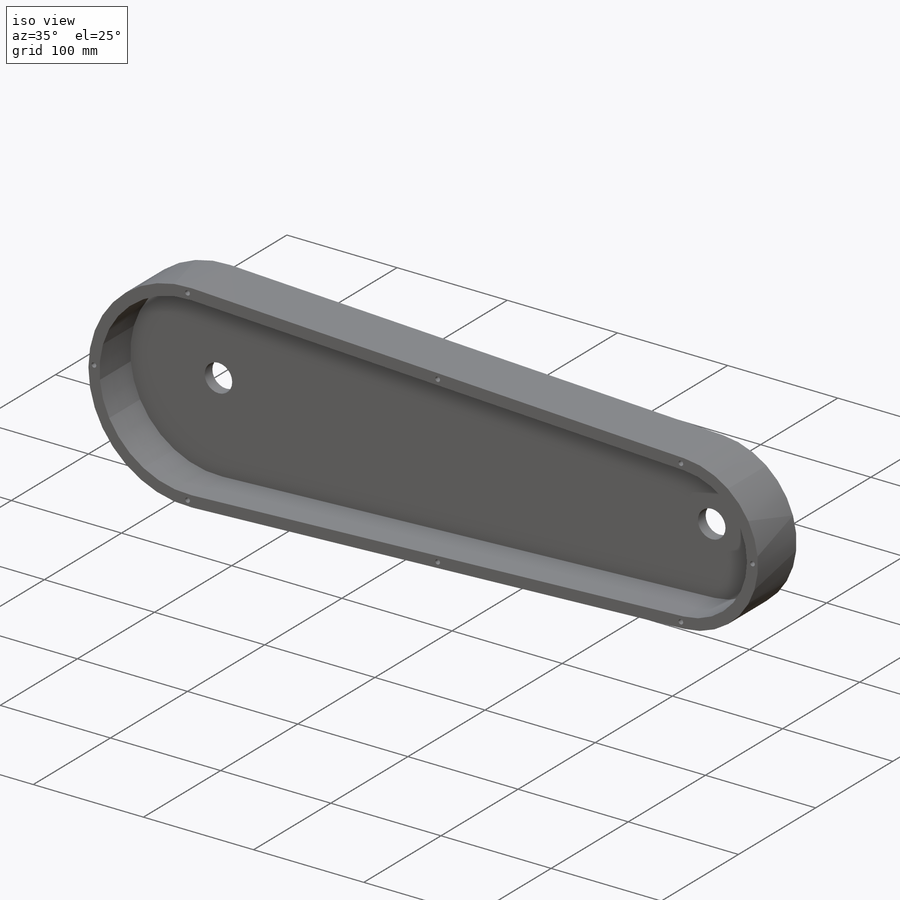
[diagram: iso view]
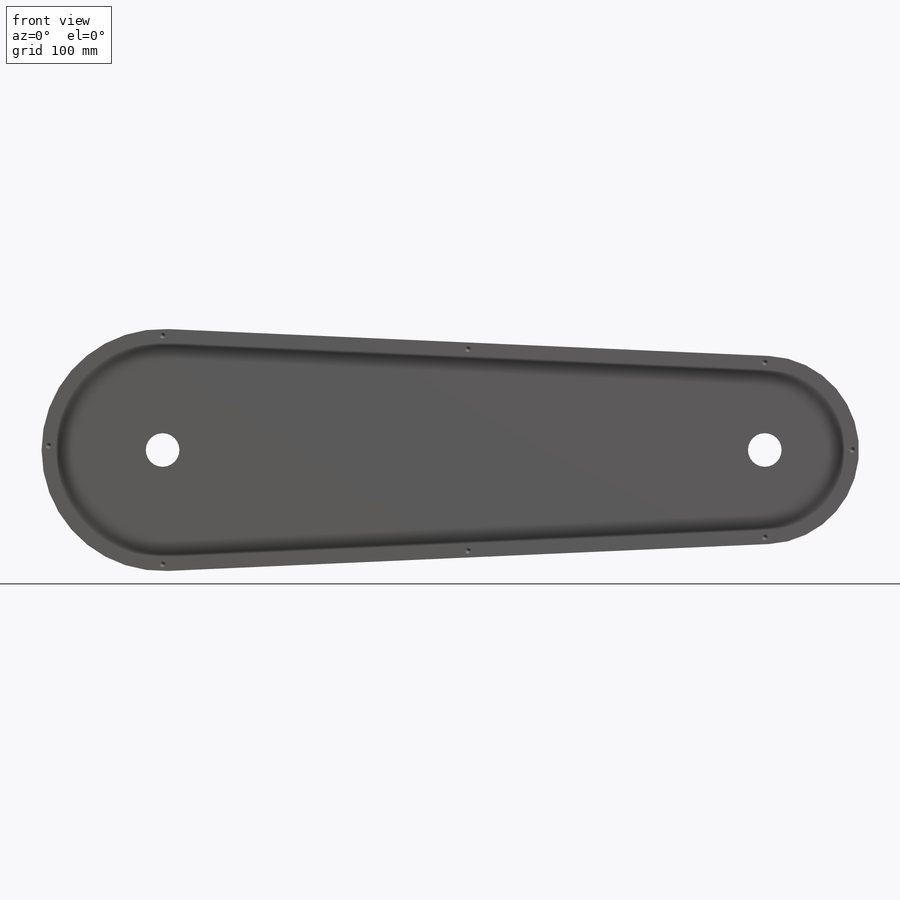
[diagram: front view]
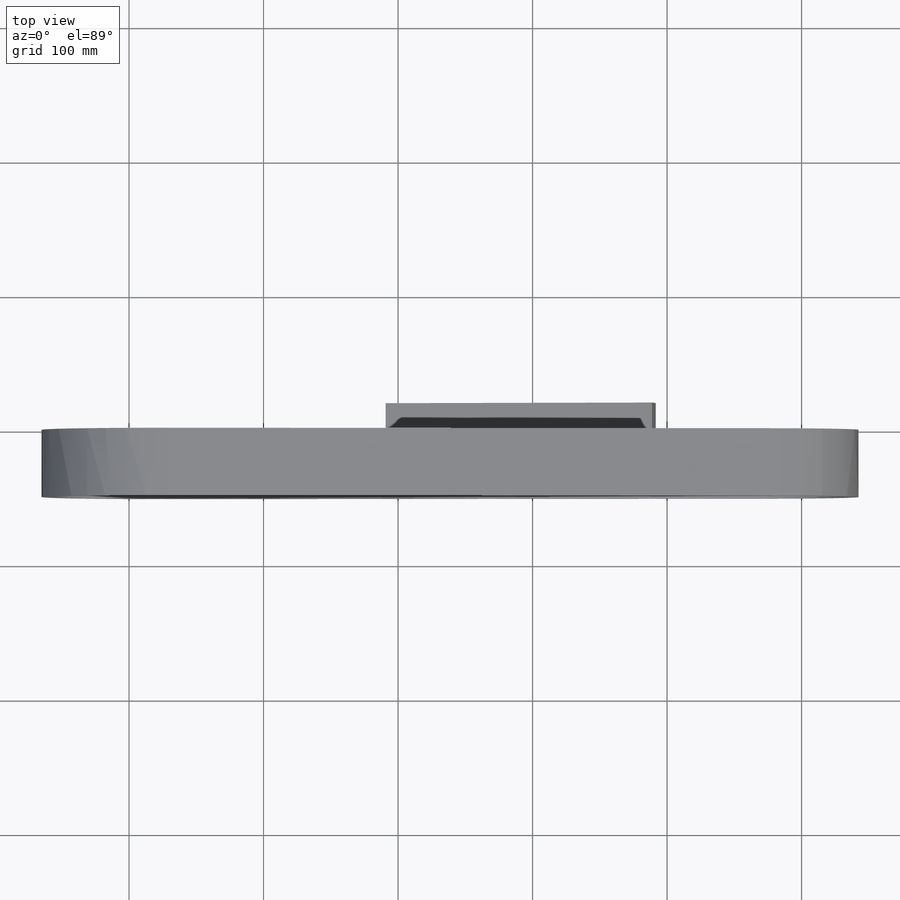
[diagram: top view]
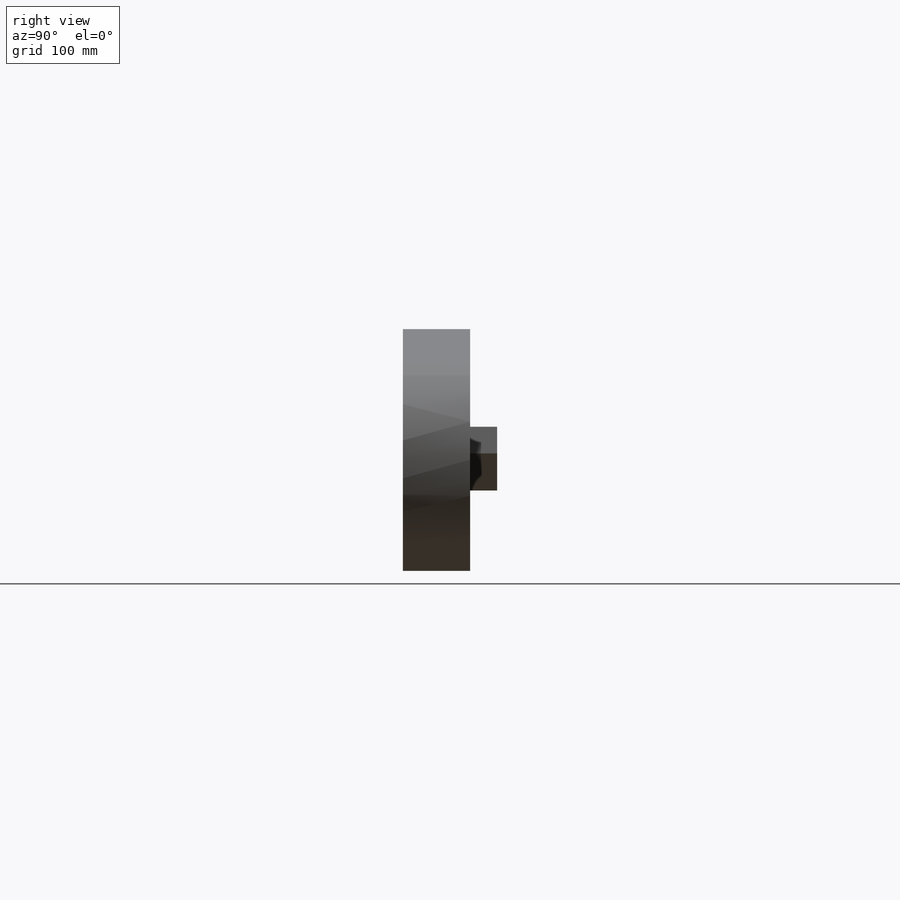
[diagram: right view]
SOLIDWORKS PART (.sldprt)
format: sldprt  version: not decoded by parser v0  size: 331,264 bytes
history: native  units: mm
features: thread x11, sketch x6, extrude x2, material x1, shell x1, cut_extrude x1, hole x1 (+16 scaffold rows collapsed)
feature tree (39):
  scaffold x16  (default folders/planes/origin — collapsed)
  material  "Material <not specified>"
  sketch  "Sketch1"  dims[c1.D1=135.0mm c1.D2=104.0mm c2.D1=90.0mm c2.D2=70.0mm c2.D3=446.82mm c3.D1=2.325mm]
  extrude  "Boss-Extrude2"  Depth=50mm
  shell  "Shell2"  Thickness=10mm
  sketch  "Sketch2"  dims[D1=25.0mm D2=25.0mm]
  cut_extrude  "Cut-Extrude1"  Depth=10mm
  hole  "M5 Tapped Hole1"  Diameter=4.2mm Depth=10mm
  sketch  "Sketch4"  dims[c1.D1=5.0mm c1.D2=5.0mm c1.D3=5.0mm c1.D4=5.0mm c1.D5=5.0mm c1.D6=5.0mm c1.D7=5.0mm c1.D8=5.0mm c1.D9=5.0mm c1.D10=5.0mm c1.D11=~85.087605mm c2.D2=85.0mm c2.D10=85.0mm c2.D5=65.0mm c2.D6=65.0mm c2.D7=65.0mm c2.D11=200.0mm c2.D12=200.0mm c2.D13=~117.814447mm c2.D3=5.0mm c2.D4=5.0mm c3.D3=5.0mm c3.D4=5.0mm]
  sketch  "Sketch3"  dims[hole-wizard template sketch: 47 standard entries collapsed; hole parameters kept: c15.Tap Drill Depth=10.0mm c15.D3=~14.816244mm c15.Drill Angle=118.0deg]
  thread  "Hole Thread1"  Diameter=10mm  [1 undecoded]
  thread  "Hole Thread2"  Diameter=10mm  [1 undecoded]
  thread  "Hole Thread3"  Diameter=10mm  [1 undecoded]
  thread  "Hole Thread4"  Diameter=10mm  [1 undecoded]
  thread  "Hole Thread5"  Diameter=10mm  [1 undecoded]
  thread  "Hole Thread6"  Diameter=10mm  [1 undecoded]
  thread  "Hole Thread7"  Diameter=10mm  [1 undecoded]
  thread  "Hole Thread8"  Diameter=10mm  [1 undecoded]
  sketch  "Sketch5"
  sketch  "Sketch7"  dims[c1.D5=5.0mm c1.D6=5.0mm c1.D7=5.0mm c1.D1=~158.47467mm c2.D1=~0.211278deg c3.D1=10.0mm c3.D2=20.0mm c3.D3=200.0mm c3.D4=20.0mm]
  extrude  "Boss-Extrude3"  [1 undecoded]
  thread  "Cosmetic Thread1"  Diameter=6mm  [1 undecoded]
  thread  "Cosmetic Thread2"  Diameter=6mm  [1 undecoded]
  thread  "Cosmetic Thread3"  Diameter=6mm  [1 undecoded]
decode coverage: 20 of 22 modeling features carry decoded parameters
note: ~ marks probable driven/reference dimensions
note: 12 parameter values undecoded
note: suppression state not decoded; provenance and decode notes live in map.json
